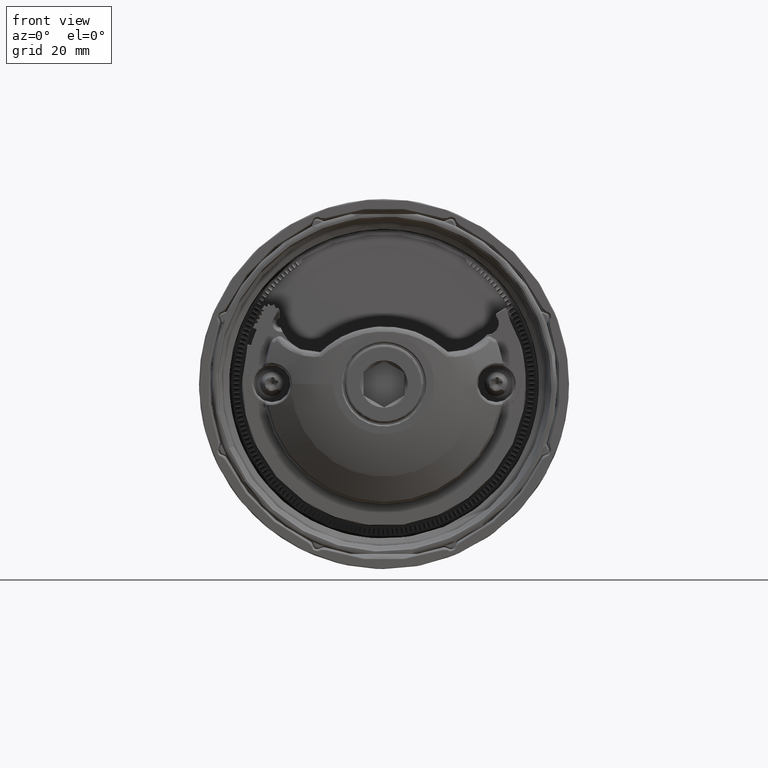
[diagram: clean part render]
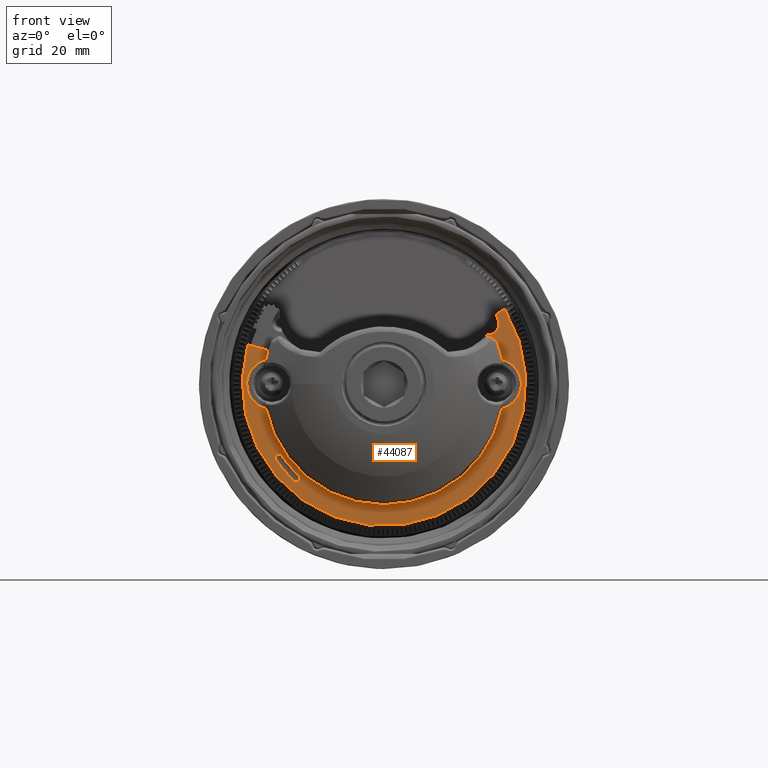
[diagram: same view with one face highlighted and labeled with its STEP entity id]
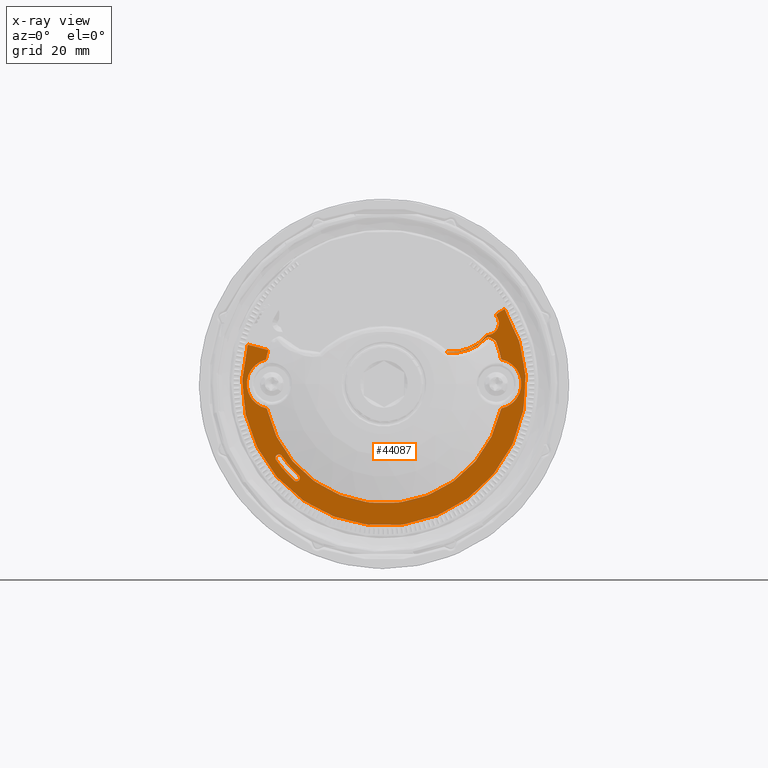
[diagram: x-ray of the same camera — body ghosted, the highlighted face saturated]
A machine part, front view. The second image highlights one B-rep face of the part: STEP entity #44087.
The next image is the same camera in x-ray: the body ghosted, the highlighted face saturated — about 0% of this face is hidden behind the body in this view.
In plain terms, the highlighted planar face has unit normal (0, -1, 0).
Its self-contained STEP definition (entity closure, byte-faithful):
#361=PLANE('',#46757);
#1552=FACE_BOUND('',#12057,.T.);
#2156=LINE('',#65971,#5500);
#2157=LINE('',#65975,#5501);
#2158=LINE('',#65983,#5502);
#2159=LINE('',#65989,#5503);
#5500=VECTOR('',#50930,1000.);
#5501=VECTOR('',#50933,1000.);
#5502=VECTOR('',#50940,1000.);
#5503=VECTOR('',#50945,1000.);
#9432=FACE_OUTER_BOUND('',#12056,.T.);
#12056=EDGE_LOOP('',(#29638,#29639,#29640,#29641,#29642,#29643,#29644,#29645,
#29646,#29647,#29648,#29649,#29650,#29651,#29652,#29653));
#12057=EDGE_LOOP('',(#29654,#29655,#29656,#29657));
#14781=CIRCLE('',#46758,24.2026180603372);
#14782=CIRCLE('',#46759,28.4430658919317);
#14783=CIRCLE('',#46760,9.04999999999999);
#14784=CIRCLE('',#46761,2.35253874428649);
#14785=CIRCLE('',#46762,9.04999999999999);
#14786=CIRCLE('',#46763,9.25);
#14787=CIRCLE('',#46764,0.8);
#14788=CIRCLE('',#46765,0.8);
#14789=CIRCLE('',#46766,24.);
#14790=CIRCLE('',#46767,5.04799777284918);
#14791=CIRCLE('',#46768,24.);
#14792=CIRCLE('',#46769,5.04799777284918);
#14793=CIRCLE('',#46770,0.713782472439528);
#14794=CIRCLE('',#46771,25.0680717275605);
#14795=CIRCLE('',#46772,0.713782472439528);
#14796=CIRCLE('',#46773,26.4956366724395);
#18013=VERTEX_POINT('',#65967);
#18014=VERTEX_POINT('',#65968);
#18015=VERTEX_POINT('',#65970);
#18016=VERTEX_POINT('',#65972);
#18017=VERTEX_POINT('',#65974);
#18018=VERTEX_POINT('',#65976);
#18019=VERTEX_POINT('',#65978);
#18020=VERTEX_POINT('',#65980);
#18021=VERTEX_POINT('',#65982);
#18022=VERTEX_POINT('',#65984);
#18023=VERTEX_POINT('',#65986);
#18024=VERTEX_POINT('',#65988);
#18025=VERTEX_POINT('',#65990);
#18026=VERTEX_POINT('',#65992);
#18027=VERTEX_POINT('',#65994);
#18028=VERTEX_POINT('',#65996);
#18029=VERTEX_POINT('',#65999);
#18030=VERTEX_POINT('',#66000);
#18031=VERTEX_POINT('',#66002);
#18032=VERTEX_POINT('',#66004);
#22545=EDGE_CURVE('',#18013,#18014,#14781,.T.);
#22546=EDGE_CURVE('',#18013,#18015,#2156,.T.);
#22547=EDGE_CURVE('',#18015,#18016,#14782,.F.);
#22548=EDGE_CURVE('',#18016,#18017,#2157,.T.);
#22549=EDGE_CURVE('',#18017,#18018,#14783,.T.);
#22550=EDGE_CURVE('',#18018,#18019,#14784,.T.);
#22551=EDGE_CURVE('',#18019,#18020,#14785,.T.);
#22552=EDGE_CURVE('',#18020,#18021,#2158,.T.);
#22553=EDGE_CURVE('',#18021,#18022,#14786,.T.);
#22554=EDGE_CURVE('',#18023,#18022,#14787,.T.);
#22555=EDGE_CURVE('',#18023,#18024,#2159,.T.);
#22556=EDGE_CURVE('',#18025,#18024,#14788,.T.);
#22557=EDGE_CURVE('',#18025,#18026,#14789,.T.);
#22558=EDGE_CURVE('',#18026,#18027,#14790,.T.);
#22559=EDGE_CURVE('',#18027,#18028,#14791,.T.);
#22560=EDGE_CURVE('',#18028,#18014,#14792,.T.);
#22561=EDGE_CURVE('',#18029,#18030,#14793,.T.);
#22562=EDGE_CURVE('',#18030,#18031,#14794,.T.);
#22563=EDGE_CURVE('',#18031,#18032,#14795,.T.);
#22564=EDGE_CURVE('',#18032,#18029,#14796,.T.);
#29638=ORIENTED_EDGE('',*,*,#22545,.F.);
#29639=ORIENTED_EDGE('',*,*,#22546,.T.);
#29640=ORIENTED_EDGE('',*,*,#22547,.T.);
#29641=ORIENTED_EDGE('',*,*,#22548,.T.);
#29642=ORIENTED_EDGE('',*,*,#22549,.T.);
#29643=ORIENTED_EDGE('',*,*,#22550,.T.);
#29644=ORIENTED_EDGE('',*,*,#22551,.T.);
#29645=ORIENTED_EDGE('',*,*,#22552,.T.);
#29646=ORIENTED_EDGE('',*,*,#22553,.T.);
#29647=ORIENTED_EDGE('',*,*,#22554,.F.);
#29648=ORIENTED_EDGE('',*,*,#22555,.T.);
#29649=ORIENTED_EDGE('',*,*,#22556,.F.);
#29650=ORIENTED_EDGE('',*,*,#22557,.T.);
#29651=ORIENTED_EDGE('',*,*,#22558,.T.);
#29652=ORIENTED_EDGE('',*,*,#22559,.T.);
#29653=ORIENTED_EDGE('',*,*,#22560,.T.);
#29654=ORIENTED_EDGE('',*,*,#22561,.T.);
#29655=ORIENTED_EDGE('',*,*,#22562,.T.);
#29656=ORIENTED_EDGE('',*,*,#22563,.T.);
#29657=ORIENTED_EDGE('',*,*,#22564,.T.);
#44087=ADVANCED_FACE('',(#9432,#1552),#361,.T.);
#46757=AXIS2_PLACEMENT_3D('',#65966,#50926,#50927);
#46758=AXIS2_PLACEMENT_3D('',#65969,#50928,#50929);
#46759=AXIS2_PLACEMENT_3D('',#65973,#50931,#50932);
#46760=AXIS2_PLACEMENT_3D('',#65977,#50934,#50935);
#46761=AXIS2_PLACEMENT_3D('',#65979,#50936,#50937);
#46762=AXIS2_PLACEMENT_3D('',#65981,#50938,#50939);
#46763=AXIS2_PLACEMENT_3D('',#65985,#50941,#50942);
#46764=AXIS2_PLACEMENT_3D('',#65987,#50943,#50944);
#46765=AXIS2_PLACEMENT_3D('',#65991,#50946,#50947);
#46766=AXIS2_PLACEMENT_3D('',#65993,#50948,#50949);
#46767=AXIS2_PLACEMENT_3D('',#65995,#50950,#50951);
#46768=AXIS2_PLACEMENT_3D('',#65997,#50952,#50953);
#46769=AXIS2_PLACEMENT_3D('',#65998,#50954,#50955);
#46770=AXIS2_PLACEMENT_3D('',#66001,#50956,#50957);
#46771=AXIS2_PLACEMENT_3D('',#66003,#50958,#50959);
#46772=AXIS2_PLACEMENT_3D('',#66005,#50960,#50961);
#46773=AXIS2_PLACEMENT_3D('',#66006,#50962,#50963);
#50926=DIRECTION('center_axis',(1.03143563357647E-28,-1.,4.93038065763104E-32));
#50927=DIRECTION('ref_axis',(1.,1.03143563357647E-28,-2.30661706675248E-44));
#50928=DIRECTION('center_axis',(-1.92944115831757E-15,-1.,2.28390504293523E-16));
#50929=DIRECTION('ref_axis',(-0.981053719008264,1.93713286474303E-15,0.193735903797034));
#50930=DIRECTION('',(-0.965925826289068,-9.96162708984963E-29,0.258819045102521));
#50931=DIRECTION('center_axis',(-1.03143563357647E-28,1.,-4.93038065763104E-32));
#50932=DIRECTION('ref_axis',(1.,1.03143563357647E-28,-2.30661706675248E-44));
#50933=DIRECTION('',(-0.848048096156421,-4.27773383049798E-16,-0.529919264233214));
#50934=DIRECTION('center_axis',(-1.03143563357647E-28,1.,-4.93038065763104E-32));
#50935=DIRECTION('ref_axis',(-0.978850696833633,-1.00952062494192E-28,0.204575935310853));
#50936=DIRECTION('center_axis',(-1.03143563357647E-28,1.,-4.93038065763104E-32));
#50937=DIRECTION('ref_axis',(-0.0369755096064087,-3.76451572651535E-30,
0.99931617203433));
#50938=DIRECTION('center_axis',(-1.03143563357647E-28,1.,-4.93038065763104E-32));
#50939=DIRECTION('ref_axis',(-0.100998751033563,-1.0466422770422E-29,-0.994886552472019));
#50940=DIRECTION('',(-2.30661706675248E-44,-4.93038065763104E-32,-1.));
#50941=DIRECTION('center_axis',(-1.92944115831757E-15,-1.,2.28390504293506E-16));
#50942=DIRECTION('ref_axis',(0.774210488198772,-1.6383483743666E-15,-0.63292821074986));
#50943=DIRECTION('center_axis',(-1.92944115831757E-15,-1.,2.28390504293506E-16));
#50944=DIRECTION('ref_axis',(-0.146357488324485,5.08319303556596E-16,0.98923176536712));
#50945=DIRECTION('',(0.866025403784438,-1.78514031035704E-15,-0.500000000000002));
#50946=DIRECTION('center_axis',(-1.92944115831757E-15,-1.,2.28390504293506E-16));
#50947=DIRECTION('ref_axis',(0.763261308627892,-1.32510698253312E-15,0.646089912281284));
#50948=DIRECTION('center_axis',(1.92944115831757E-15,1.,-2.28390504293506E-16));
#50949=DIRECTION('ref_axis',(-0.932413650665124,1.71649858143174E-15,-0.361392838962446));
#50950=DIRECTION('center_axis',(-1.03143563357647E-28,1.,-4.93038065763104E-32));
#50951=DIRECTION('ref_axis',(1.,1.03143563357647E-28,-2.30661706675248E-44));
#50952=DIRECTION('center_axis',(1.92944115831757E-15,1.,-2.28390504293506E-16));
#50953=DIRECTION('ref_axis',(-0.978935185185185,1.93542861454133E-15,0.204171259501546));
#50954=DIRECTION('center_axis',(-1.03143563357647E-28,1.,-4.93038065763104E-32));
#50955=DIRECTION('ref_axis',(-1.,-1.03143563357647E-28,2.30661706675248E-44));
#50956=DIRECTION('center_axis',(-1.03143563357647E-28,1.,-4.93038065763104E-32));
#50957=DIRECTION('ref_axis',(-1.,-1.03143563357647E-28,2.43032512419079E-15));
#50958=DIRECTION('center_axis',(1.03143563357647E-28,-1.,4.93038065763104E-32));
#50959=DIRECTION('ref_axis',(-1.,-1.03143563357647E-28,2.30661706675248E-44));
#50960=DIRECTION('center_axis',(-1.03143563357647E-28,1.,-4.93038065763104E-32));
#50961=DIRECTION('ref_axis',(-1.,-1.03143563357647E-28,2.30661706675248E-44));
#50962=DIRECTION('center_axis',(-1.03143563357647E-28,1.,-4.93038065763104E-32));
#50963=DIRECTION('ref_axis',(-1.,-1.03143563357647E-28,-1.15463194561016E-14));
#65966=CARTESIAN_POINT('Origin',(2.57858908394118E-28,-2.5,1.23259516440776E-31));
#65967=CARTESIAN_POINT('',(-23.2384321068254,-2.5,6.76328279691507));
#65968=CARTESIAN_POINT('',(-23.7007653213309,-2.5,4.90310556257759));
#65969=CARTESIAN_POINT('Origin',(-4.12819553347836E-13,-2.49999999999999,
1.21247818649134E-14));
#65970=CARTESIAN_POINT('',(-27.3351895473053,-2.5,7.86100564467786));
#65971=CARTESIAN_POINT('',(0.134140920131433,-2.5,0.500620729304548));
#65972=CARTESIAN_POINT('',(24.1657067802868,-2.5,15.000887078502));
#65973=CARTESIAN_POINT('Origin',(2.57858908394118E-28,-2.5,1.23259516440776E-31));
#65974=CARTESIAN_POINT('',(22.5512392483105,-2.5,13.9920557981173));
#65975=CARTESIAN_POINT('',(24.31202673,-2.5,15.0923179306507));
#65976=CARTESIAN_POINT('',(22.4917286035783,-2.50000000000002,13.6654286551973));
#65977=CARTESIAN_POINT('Origin',(13.6195541506758,-2.5,15.4506514640544));
#65978=CARTESIAN_POINT('',(20.6900379724333,-2.49999999999994,9.80169062808945));
#65979=CARTESIAN_POINT('Origin',(20.6887548895617,-2.5,12.154229022477));
#65980=CARTESIAN_POINT('',(12.7055154538221,-2.5,6.44692816418265));
#65981=CARTESIAN_POINT('Origin',(13.6195541506758,-2.5,15.4506514640544));
#65982=CARTESIAN_POINT('',(12.7055154538216,-2.50000000000001,6.24527114681515));
#65983=CARTESIAN_POINT('',(12.7055154538221,-2.5,6.44692816418265));
#65984=CARTESIAN_POINT('',(20.3660264713392,-2.50000000000003,9.12168180110081));
#65985=CARTESIAN_POINT('Origin',(13.6195541506755,-2.50000000000001,15.45));
#65986=CARTESIAN_POINT('',(21.3495051585317,-2.50000000000003,9.26718811773708));
#65987=CARTESIAN_POINT('Origin',(20.9495051585317,-2.50000000000003,8.57436779470953));
#65988=CARTESIAN_POINT('',(22.1315200023992,-2.50000000000003,8.81569163711987));
#65989=CARTESIAN_POINT('',(21.3495051585317,-2.50000000000003,9.26718811773708));
#65990=CARTESIAN_POINT('',(22.4808827611027,-2.50000000000003,8.40297032492309));
#65991=CARTESIAN_POINT('Origin',(21.7315200023993,-2.50000000000003,8.12287131409232));
#65992=CARTESIAN_POINT('',(23.4837270774509,-2.5,4.95121828965156));
#65993=CARTESIAN_POINT('Origin',(-4.10599107298585E-13,-2.49999999999999,
7.6838897664128E-15));
#65994=CARTESIAN_POINT('',(23.4837270774509,-2.5,-4.95121828965156));
#65995=CARTESIAN_POINT('Origin',(22.5,-2.5,1.23259516440257E-31));
#65996=CARTESIAN_POINT('',(-23.4837270774518,-2.5,-4.95121828965139));
#65997=CARTESIAN_POINT('Origin',(-4.10599107298585E-13,-2.49999999999999,
7.6838897664128E-15));
#65998=CARTESIAN_POINT('Origin',(-22.5,-2.5,1.23259516441295E-31));
#65999=CARTESIAN_POINT('',(-21.6740371931671,-2.5,-15.2399105780556));
#66000=CARTESIAN_POINT('',(-20.5062563961443,-2.5,-14.4187956762592));
#66001=CARTESIAN_POINT('Origin',(-21.0901467946557,-2.5,-14.8293531271574));
#66002=CARTESIAN_POINT('',(-17.0886768246342,-2.5,-18.3408109014113));
#66003=CARTESIAN_POINT('Origin',(2.57858908394118E-28,-2.5,1.23259516440776E-31));
#66004=CARTESIAN_POINT('',(-18.0618348821961,-2.5,-19.385274910772));
#66005=CARTESIAN_POINT('Origin',(-17.5752558534151,-2.5,-18.8630429060917));
#66006=CARTESIAN_POINT('Origin',(2.57858908394118E-28,-2.5,1.23259516440776E-31));